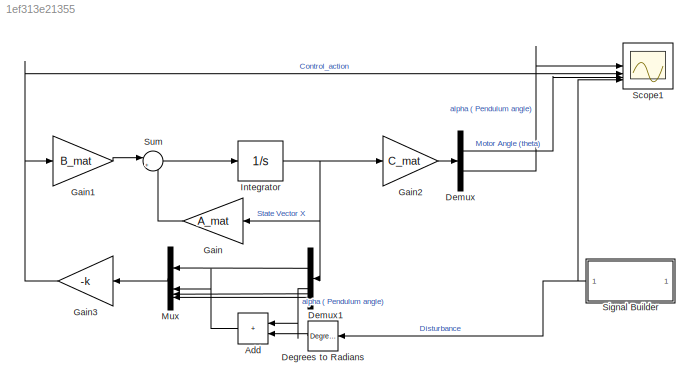
MODEL slx_1ef313e21355
KIND model
CONFIG AbsTol = auto
CONFIG EnableMultiTasking = off
CONFIG FixedStep = auto
CONFIG MaxStep = auto
CONFIG MinStep = auto
CONFIG RelTol = 1e-3
CONFIG SampleTimeConstraint = Unconstrained
CONFIG SolverName = VariableStepAuto
CONFIG StartTime = 0.0
CONFIG StopTime = 10
BLOCK [Sum] Add
  IconShape = rectangular
BLOCK [Reference] Degrees to Radians  REF=simulink_extras/Transformations/Degrees to
Radians
  SourceBlock = simulink_extras/Transformations/Degrees to\nRadians
  SourceType = DegreesToRadians
BLOCK [Demux] Demux
  Outputs = 2
BLOCK [Demux] Demux1
BLOCK [Gain] Gain
  Gain = A_mat
  Multiplication = Matrix(K*u)
BLOCK [Gain] Gain1
  Gain = B_mat
  Multiplication = Matrix(K*u)
BLOCK [Gain] Gain2
  Gain = C_mat
  Multiplication = Matrix(K*u)
BLOCK [Gain] Gain3
  Gain = -k
  Multiplication = Matrix(K*u)
BLOCK [Integrator] Integrator
  InitialCondition = [0 0.436 0 0]
BLOCK [Mux] Mux
  DisplayOption = bar
BLOCK [Scope] Scope1
  Floating = off
  NameLocation = top
  NumInputPorts = 4
  ScopeSpecificationString = Simulink.scopes.TimeScopeBlockCfg('CurrentConfiguration', extmgr.ConfigurationSet(extmgr.Configuration('Core','General UI',true),extmgr.Configuration('Core','Source UI',true),extmgr.Configuration('Sources','WiredSimulink',true,'DataLoggingVariableName','ScopeData1'),extmgr.Configuration('Visuals','Time Domain',true,'SerializedDisplays',{struct('MinYLimReal','-1.44053','MaxYLimReal','1.57743','YLab...<+3607ch>
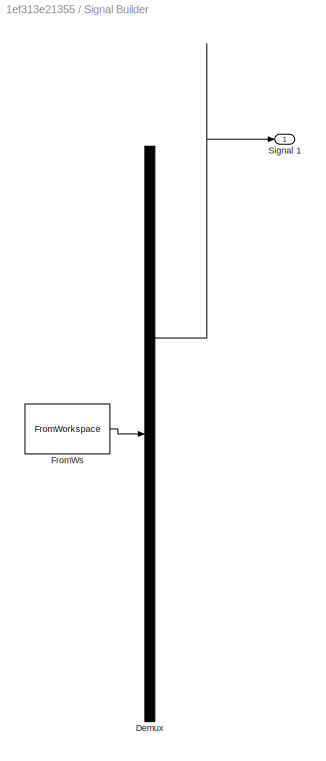
BLOCK [SubSystem] Signal Builder
  ClipboardFcn = sigbuilder_block('clipboard');
  CloseFcn = sigbuilder_block('close');
  ContinueFcn = sigbuilder_block('continue');
  CopyFcn = sigbuilder_block('copy');
  DeleteFcn = sigbuilder_block('delete');
  LoadFcn = sigbuilder_block('load');
  MaskHideContents = on
  ModelCloseFcn = sigbuilder_block('modelClose');
  NameChangeFcn = sigbuilder_block('namechange');
  OpenFcn = sigbuilder_block('open',[251.25 72.75 550.5 417.75 ]);
  PauseFcn = sigbuilder_block('pause');
  PreSaveFcn = sigbuilder_block('preSave');
  StartFcn = sigbuilder_block('start');
  StopFcn = sigbuilder_block('stop');
  Tag = STV Subsys
BLOCK [Demux] Signal Builder/Demux
  DisplayOption = none
  Outputs = 1
  Tag = STV Demux
BLOCK [FromWorkspace] Signal Builder/FromWs
  Tag = STV FromWs
  VariableName = tuvar
BLOCK [Outport] Signal Builder/Signal 1
  Tag = STV Outport
BLOCK [Sum] Sum
  Inputs = |++
LINE Add:1 -> Mux:2
LINE Degrees to Radians:1 -> Add:2
LINE Demux1:1 -> Mux:1
LINE Demux1:2 -> Add:1
LINE Demux1:3 -> Mux:3
LINE Demux1:4 -> Mux:4
LINE Demux:1 -> Scope1:3
LINE Demux:2 -> Scope1:1
LINE Gain1:1 -> Sum:1
LINE Gain2:1 -> Demux:1
NET Gain3:1 -> Gain1:1, Scope1:2
LINE Gain:1 -> Sum:2
NET Integrator:1 -> Demux1:1, Gain2:1, Gain:1
LINE Mux:1 -> Gain3:1
NET Signal Builder:1 -> Degrees to Radians:1, Scope1:4
LINE Sum:1 -> Integrator:1
note: NET lines group one-source signal fan-out (src -> all destinations, sorted); 1:1 wires keep LINE
